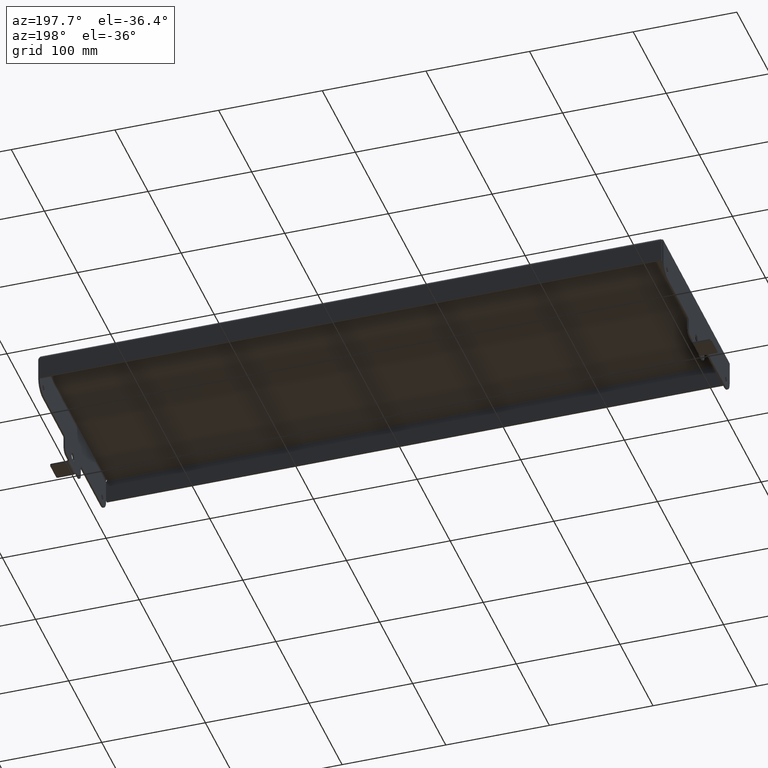
[diagram: clean part render]
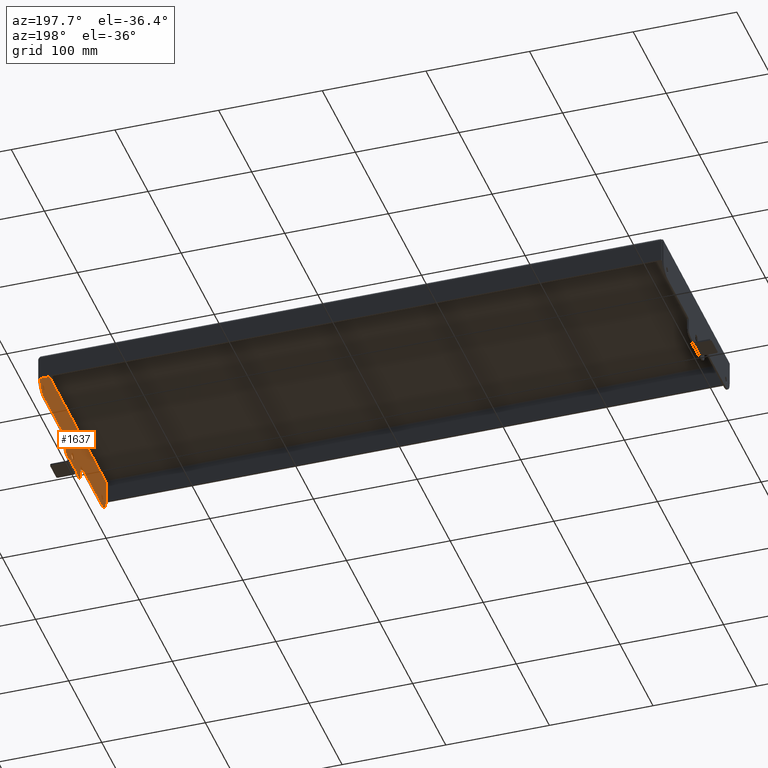
[diagram: same view with one face highlighted and labeled with its STEP entity id]
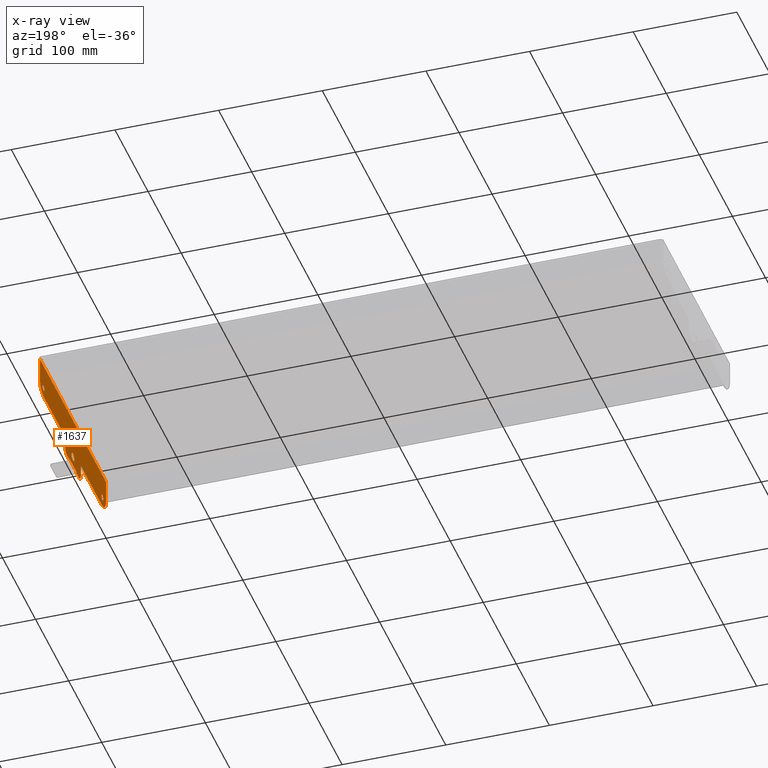
[diagram: x-ray of the same camera — body ghosted, the highlighted face saturated]
A machine part, auxiliary view. The second image highlights one B-rep face of the part: STEP entity #1637.
The next image is the same camera in x-ray: the body ghosted, the highlighted face saturated — about 0% of this face is hidden behind the body in this view.
In plain terms, the highlighted planar face has unit normal (1, 0, 0).
Its self-contained STEP definition (entity closure, byte-faithful):
#45 = CARTESIAN_POINT ( 'NONE',  ( 11.81500000000146322, 0.4271429945020360774, -1.160018063491211615 ) ) ;
#55 = FACE_BOUND ( 'NONE', #3131, .T. ) ;
#69 = LINE ( 'NONE', #2667, #3317 ) ;
#72 = ORIENTED_EDGE ( 'NONE', *, *, #3440, .F. ) ;
#93 = EDGE_CURVE ( 'NONE', #2783, #881, #749, .T. ) ;
#113 = AXIS2_PLACEMENT_3D ( 'NONE', #1660, #1330, #3770 ) ;
#137 = CARTESIAN_POINT ( 'NONE',  ( 11.81499999999999773, -1.000000000000000000, -0.5625000000000000000 ) ) ;
#156 = VERTEX_POINT ( 'NONE', #3931 ) ;
#182 = DIRECTION ( 'NONE',  ( 1.000000000000000000, -0.0000000000000000000, -0.0000000000000000000 ) ) ;
#198 = DIRECTION ( 'NONE',  ( 1.000000000000000000, -0.0000000000000000000, -0.0000000000000000000 ) ) ;
#215 = ORIENTED_EDGE ( 'NONE', *, *, #222, .T. ) ;
#216 = CARTESIAN_POINT ( 'NONE',  ( 11.81499999999999773, -1.000000000000000000, -0.5000000000000000000 ) ) ;
#222 = EDGE_CURVE ( 'NONE', #2947, #1318, #3489, .T. ) ;
#226 = AXIS2_PLACEMENT_3D ( 'NONE', #1380, #3914, #1417 ) ;
#244 = DIRECTION ( 'NONE',  ( 0.0000000000000000000, 0.0000000000000000000, 1.000000000000000000 ) ) ;
#245 = LINE ( 'NONE', #2439, #1865 ) ;
#246 = ORIENTED_EDGE ( 'NONE', *, *, #2261, .T. ) ;
#247 = LINE ( 'NONE', #3967, #1273 ) ;
#273 = AXIS2_PLACEMENT_3D ( 'NONE', #2115, #2073, #857 ) ;
#284 = CARTESIAN_POINT ( 'NONE',  ( 11.81499999999999773, -3.500000000000000000, -0.01599999999999999686 ) ) ;
#291 = CARTESIAN_POINT ( 'NONE',  ( 11.81499999999999773, -2.438750000000000195, -0.5000000000000000000 ) ) ;
#321 = ORIENTED_EDGE ( 'NONE', *, *, #2095, .F. ) ;
#342 = ORIENTED_EDGE ( 'NONE', *, *, #525, .T. ) ;
#360 = ORIENTED_EDGE ( 'NONE', *, *, #905, .F. ) ;
#375 = VECTOR ( 'NONE', #951, 39.37007874015748854 ) ;
#381 = CIRCLE ( 'NONE', #1813, 0.1089999999999999997 ) ;
#404 = VECTOR ( 'NONE', #2425, 39.37007874015748143 ) ;
#410 = VERTEX_POINT ( 'NONE', #2628 ) ;
#416 = VERTEX_POINT ( 'NONE', #2979 ) ;
#429 = VECTOR ( 'NONE', #1852, 39.37007874015748143 ) ;
#464 = LINE ( 'NONE', #868, #404 ) ;
#468 = EDGE_LOOP ( 'NONE', ( #2216 ) ) ;
#477 = ORIENTED_EDGE ( 'NONE', *, *, #610, .F. ) ;
#478 = AXIS2_PLACEMENT_3D ( 'NONE', #3447, #657, #2878 ) ;
#506 = VECTOR ( 'NONE', #633, 39.37007874015748143 ) ;
#520 = DIRECTION ( 'NONE',  ( 1.000000000000000000, 0.0000000000000000000, 0.0000000000000000000 ) ) ;
#525 = EDGE_CURVE ( 'NONE', #1371, #416, #1489, .T. ) ;
#534 = CARTESIAN_POINT ( 'NONE',  ( 11.81499999999999773, -3.500000000000000000, -0.1250000000000000000 ) ) ;
#549 = CARTESIAN_POINT ( 'NONE',  ( 11.81499999999999773, 0.9375000000000000000, -0.5625000000000000000 ) ) ;
#569 = CARTESIAN_POINT ( 'NONE',  ( 11.81499999999999773, -0.9375000000000000000, -0.9399999999999999467 ) ) ;
#590 = VERTEX_POINT ( 'NONE', #3071 ) ;
#594 = LINE ( 'NONE', #1463, #429 ) ;
#609 = VERTEX_POINT ( 'NONE', #284 ) ;
#610 = EDGE_CURVE ( 'NONE', #1888, #1376, #245, .T. ) ;
#633 = DIRECTION ( 'NONE',  ( 0.0000000000000000000, -1.000000000000000000, -0.0000000000000000000 ) ) ;
#636 = CIRCLE ( 'NONE', #113, 0.1089999999999999997 ) ;
#643 = ORIENTED_EDGE ( 'NONE', *, *, #3632, .T. ) ;
#644 = CARTESIAN_POINT ( 'NONE',  ( 11.81500000000146322, -0.4271429945020360774, -1.160018063491211615 ) ) ;
#657 = DIRECTION ( 'NONE',  ( 1.000000000000000000, -0.0000000000000000000, -0.0000000000000000000 ) ) ;
#736 = ORIENTED_EDGE ( 'NONE', *, *, #831, .T. ) ;
#749 = LINE ( 'NONE', #789, #1832 ) ;
#774 = EDGE_CURVE ( 'NONE', #2742, #2556, #1203, .T. ) ;
#789 = CARTESIAN_POINT ( 'NONE',  ( 11.81499999999999773, 3.939999999999999947, 0.4400000000000000022 ) ) ;
#790 = EDGE_CURVE ( 'NONE', #156, #410, #2930, .T. ) ;
#831 = EDGE_CURVE ( 'NONE', #1888, #1371, #1133, .T. ) ;
#857 = DIRECTION ( 'NONE',  ( 0.0000000000000000000, 0.0000000000000000000, -1.000000000000000000 ) ) ;
#868 = CARTESIAN_POINT ( 'NONE',  ( 11.81499999999999773, 0.9375000000000000000, -0.8449999999999999734 ) ) ;
#881 = VERTEX_POINT ( 'NONE', #2103 ) ;
#883 = CARTESIAN_POINT ( 'NONE',  ( 11.81500000000731454, -0.4324296188335550184, -1.189999999949562071 ) ) ;
#905 = EDGE_CURVE ( 'NONE', #2947, #2742, #3268, .T. ) ;
#951 = DIRECTION ( 'NONE',  ( -4.598749136963798573E-10, 0.1736481776660885323, 0.9848077530123563461 ) ) ;
#956 = CARTESIAN_POINT ( 'NONE',  ( 11.81499999999191175, -0.4218499999999693606, -1.130000000000154214 ) ) ;
#992 = CARTESIAN_POINT ( 'NONE',  ( 11.81499999999999773, -0.6875000000000000000, -1.189999999999999947 ) ) ;
#1003 = DIRECTION ( 'NONE',  ( 1.000000000000000000, 0.0000000000000000000, 0.0000000000000000000 ) ) ;
#1086 = VERTEX_POINT ( 'NONE', #2359 ) ;
#1100 = CARTESIAN_POINT ( 'NONE',  ( 11.81499999999999773, -4.000000000000000000, -1.129999999999999893 ) ) ;
#1133 = CIRCLE ( 'NONE', #3483, 0.06250000000000001388 ) ;
#1152 = AXIS2_PLACEMENT_3D ( 'NONE', #3724, #1003, #1287 ) ;
#1199 = CARTESIAN_POINT ( 'NONE',  ( 11.81499999999999773, 3.500000000000000000, -0.01599999999999999686 ) ) ;
#1203 = CIRCLE ( 'NONE', #226, 0.2499999999999999167 ) ;
#1217 = ORIENTED_EDGE ( 'NONE', *, *, #2920, .T. ) ;
#1256 = FACE_BOUND ( 'NONE', #1381, .T. ) ;
#1272 = VECTOR ( 'NONE', #3262, 39.37007874015748143 ) ;
#1273 = VECTOR ( 'NONE', #2421, 39.37007874015748143 ) ;
#1279 = VERTEX_POINT ( 'NONE', #3695 ) ;
#1287 = DIRECTION ( 'NONE',  ( 0.0000000000000000000, 0.0000000000000000000, -1.000000000000000000 ) ) ;
#1305 = ORIENTED_EDGE ( 'NONE', *, *, #1723, .T. ) ;
#1318 = VERTEX_POINT ( 'NONE', #1585 ) ;
#1330 = DIRECTION ( 'NONE',  ( 1.000000000000000000, -0.0000000000000000000, -0.0000000000000000000 ) ) ;
#1335 = VERTEX_POINT ( 'NONE', #956 ) ;
#1348 = AXIS2_PLACEMENT_3D ( 'NONE', #2150, #3994, #2231 ) ;
#1371 = VERTEX_POINT ( 'NONE', #216 ) ;
#1374 = DIRECTION ( 'NONE',  ( 0.0000000000000000000, -0.0000000000000000000, 1.000000000000000000 ) ) ;
#1376 = VERTEX_POINT ( 'NONE', #569 ) ;
#1380 = CARTESIAN_POINT ( 'NONE',  ( 11.81499999999999773, 0.6875000000000000000, -0.9399999999999999467 ) ) ;
#1381 = EDGE_LOOP ( 'NONE', ( #3249 ) ) ;
#1385 = VERTEX_POINT ( 'NONE', #2373 ) ;
#1417 = DIRECTION ( 'NONE',  ( 0.0000000000000000000, 0.0000000000000000000, -1.000000000000000000 ) ) ;
#1454 = VERTEX_POINT ( 'NONE', #549 ) ;
#1463 = CARTESIAN_POINT ( 'NONE',  ( 11.81499999999777728, 0.4140499999999882608, -1.130000000000064508 ) ) ;
#1476 = VERTEX_POINT ( 'NONE', #992 ) ;
#1489 = LINE ( 'NONE', #291, #3428 ) ;
#1495 = EDGE_CURVE ( 'NONE', #1086, #416, #3499, .T. ) ;
#1496 = CARTESIAN_POINT ( 'NONE',  ( 11.81499999999999773, 3.439999999999999947, -0.5000000000000000000 ) ) ;
#1508 = CIRCLE ( 'NONE', #273, 0.5000000000000000000 ) ;
#1542 = ORIENTED_EDGE ( 'NONE', *, *, #3878, .T. ) ;
#1550 = ORIENTED_EDGE ( 'NONE', *, *, #93, .F. ) ;
#1567 = LINE ( 'NONE', #1636, #506 ) ;
#1571 = EDGE_CURVE ( 'NONE', #2888, #1335, #2492, .T. ) ;
#1585 = CARTESIAN_POINT ( 'NONE',  ( 11.81499999999191175, 0.4218499999999693606, -1.130000000000154214 ) ) ;
#1636 = CARTESIAN_POINT ( 'NONE',  ( 11.81499999999999773, 2.438750000000000195, -0.5000000000000000000 ) ) ;
#1637 = ADVANCED_FACE ( 'NONE', ( #1256, #55, #3455, #2826 ), #1907, .F. ) ;
#1660 = CARTESIAN_POINT ( 'NONE',  ( 11.81499999999999773, 3.500000000000000000, -0.1250000000000000000 ) ) ;
#1723 = EDGE_CURVE ( 'NONE', #2452, #1279, #1567, .T. ) ;
#1738 = DIRECTION ( 'NONE',  ( 0.0000000000000000000, 1.000000000000000000, 0.0000000000000000000 ) ) ;
#1778 = CARTESIAN_POINT ( 'NONE',  ( 11.81499999999999773, 0.0000000000000000000, -1.189999999999999947 ) ) ;
#1792 = EDGE_CURVE ( 'NONE', #590, #590, #3301, .T. ) ;
#1813 = AXIS2_PLACEMENT_3D ( 'NONE', #534, #182, #244 ) ;
#1832 = VECTOR ( 'NONE', #1374, 39.37007874015748143 ) ;
#1852 = DIRECTION ( 'NONE',  ( 1.794886032906816524E-10, -1.000000000000000000, 1.766161645701992764E-11 ) ) ;
#1865 = VECTOR ( 'NONE', #2461, 39.37007874015748143 ) ;
#1888 = VERTEX_POINT ( 'NONE', #2250 ) ;
#1897 = VECTOR ( 'NONE', #2795, 39.37007874015748854 ) ;
#1903 = VECTOR ( 'NONE', #2021, 39.37007874015748143 ) ;
#1907 = PLANE ( 'NONE',  #2385 ) ;
#2021 = DIRECTION ( 'NONE',  ( 0.0000000000000000000, -0.0000000000000000000, 1.000000000000000000 ) ) ;
#2023 = EDGE_CURVE ( 'NONE', #2556, #1454, #464, .T. ) ;
#2073 = DIRECTION ( 'NONE',  ( 1.000000000000000000, 0.0000000000000000000, 0.0000000000000000000 ) ) ;
#2080 = CARTESIAN_POINT ( 'NONE',  ( 11.81499999999999773, -0.6875000000000000000, -0.9399999999999999467 ) ) ;
#2095 = EDGE_CURVE ( 'NONE', #2452, #2783, #1508, .T. ) ;
#2103 = CARTESIAN_POINT ( 'NONE',  ( 11.81499999999999773, 3.939999999999999947, 0.8800000000000000044 ) ) ;
#2115 = CARTESIAN_POINT ( 'NONE',  ( 11.81499999999999773, 3.439999999999999947, 0.0000000000000000000 ) ) ;
#2122 = ORIENTED_EDGE ( 'NONE', *, *, #2735, .F. ) ;
#2150 = CARTESIAN_POINT ( 'NONE',  ( 11.81499999999999773, -3.439999999999999947, 0.0000000000000000000 ) ) ;
#2212 = LINE ( 'NONE', #3132, #3067 ) ;
#2216 = ORIENTED_EDGE ( 'NONE', *, *, #1792, .T. ) ;
#2231 = DIRECTION ( 'NONE',  ( 0.0000000000000000000, 0.0000000000000000000, -1.000000000000000000 ) ) ;
#2245 = ORIENTED_EDGE ( 'NONE', *, *, #790, .F. ) ;
#2250 = CARTESIAN_POINT ( 'NONE',  ( 11.81499999999999773, -0.9375000000000000000, -0.5625000000000000000 ) ) ;
#2261 = EDGE_CURVE ( 'NONE', #1385, #881, #2212, .T. ) ;
#2305 = ORIENTED_EDGE ( 'NONE', *, *, #2023, .F. ) ;
#2308 = VECTOR ( 'NONE', #2647, 39.37007874015748143 ) ;
#2359 = CARTESIAN_POINT ( 'NONE',  ( 11.81499999999999773, -3.939999999999999947, 4.592425496802574219E-17 ) ) ;
#2373 = CARTESIAN_POINT ( 'NONE',  ( 11.81499999999999773, -3.940000000000099867, 0.8800000000000320899 ) ) ;
#2385 = AXIS2_PLACEMENT_3D ( 'NONE', #2534, #3774, #2868 ) ;
#2421 = DIRECTION ( 'NONE',  ( 1.794886032906816524E-10, 1.000000000000000000, 1.766161645701992764E-11 ) ) ;
#2425 = DIRECTION ( 'NONE',  ( 0.0000000000000000000, -0.0000000000000000000, 1.000000000000000000 ) ) ;
#2437 = VERTEX_POINT ( 'NONE', #1199 ) ;
#2439 = CARTESIAN_POINT ( 'NONE',  ( 11.81499999999999773, -0.9375000000000000000, -0.8449999999999999734 ) ) ;
#2452 = VERTEX_POINT ( 'NONE', #1496 ) ;
#2461 = DIRECTION ( 'NONE',  ( 0.0000000000000000000, -0.0000000000000000000, -1.000000000000000000 ) ) ;
#2492 = LINE ( 'NONE', #644, #375 ) ;
#2534 = CARTESIAN_POINT ( 'NONE',  ( 11.81499999999999773, -4.000000000000000000, 0.0000000000000000000 ) ) ;
#2556 = VERTEX_POINT ( 'NONE', #3930 ) ;
#2596 = EDGE_CURVE ( 'NONE', #2437, #2437, #636, .T. ) ;
#2619 = ORIENTED_EDGE ( 'NONE', *, *, #1571, .F. ) ;
#2628 = CARTESIAN_POINT ( 'NONE',  ( 11.81499999999915929, 0.4062500000000000555, -1.129999999999981464 ) ) ;
#2647 = DIRECTION ( 'NONE',  ( 0.0000000000000000000, 1.000000000000000000, 0.0000000000000000000 ) ) ;
#2667 = CARTESIAN_POINT ( 'NONE',  ( 11.81499999999999773, 0.0000000000000000000, -1.189999999999999947 ) ) ;
#2695 = ORIENTED_EDGE ( 'NONE', *, *, #3010, .F. ) ;
#2735 = EDGE_CURVE ( 'NONE', #1476, #2888, #69, .T. ) ;
#2742 = VERTEX_POINT ( 'NONE', #3309 ) ;
#2783 = VERTEX_POINT ( 'NONE', #2997 ) ;
#2790 = ORIENTED_EDGE ( 'NONE', *, *, #774, .F. ) ;
#2795 = DIRECTION ( 'NONE',  ( -4.598749136963798573E-10, -0.1736481776660885323, 0.9848077530123563461 ) ) ;
#2826 = FACE_OUTER_BOUND ( 'NONE', #3717, .T. ) ;
#2868 = DIRECTION ( 'NONE',  ( 0.0000000000000000000, 0.0000000000000000000, -1.000000000000000000 ) ) ;
#2878 = DIRECTION ( 'NONE',  ( 0.0000000000000000000, 0.0000000000000000000, 1.000000000000000000 ) ) ;
#2888 = VERTEX_POINT ( 'NONE', #883 ) ;
#2920 = EDGE_CURVE ( 'NONE', #1318, #410, #594, .T. ) ;
#2930 = LINE ( 'NONE', #1100, #1272 ) ;
#2947 = VERTEX_POINT ( 'NONE', #3075 ) ;
#2979 = CARTESIAN_POINT ( 'NONE',  ( 11.81499999999999773, -3.439999999999999947, -0.5000000000000000000 ) ) ;
#2997 = CARTESIAN_POINT ( 'NONE',  ( 11.81499999999999773, 3.939999999999999947, 0.0000000000000000000 ) ) ;
#3010 = EDGE_CURVE ( 'NONE', #1335, #156, #247, .T. ) ;
#3067 = VECTOR ( 'NONE', #3677, 39.37007874015748143 ) ;
#3071 = CARTESIAN_POINT ( 'NONE',  ( 11.81499999999999773, 0.0000000000000000000, -0.9162500000000000089 ) ) ;
#3075 = CARTESIAN_POINT ( 'NONE',  ( 11.81500000000617945, 0.4324296188425960641, -1.189999999999900915 ) ) ;
#3131 = EDGE_LOOP ( 'NONE', ( #1542 ) ) ;
#3132 = CARTESIAN_POINT ( 'NONE',  ( 11.81500000000000128, -4.000000000000000000, 0.8800000000000000044 ) ) ;
#3249 = ORIENTED_EDGE ( 'NONE', *, *, #2596, .T. ) ;
#3262 = DIRECTION ( 'NONE',  ( -0.0000000000000000000, 1.000000000000000000, 0.0000000000000000000 ) ) ;
#3268 = LINE ( 'NONE', #1778, #2308 ) ;
#3301 = CIRCLE ( 'NONE', #1152, 0.1562500000000000000 ) ;
#3309 = CARTESIAN_POINT ( 'NONE',  ( 11.81499999999999773, 0.6875000000000000000, -1.189999999999999947 ) ) ;
#3317 = VECTOR ( 'NONE', #1738, 39.37007874015748143 ) ;
#3319 = ORIENTED_EDGE ( 'NONE', *, *, #3756, .T. ) ;
#3375 = DIRECTION ( 'NONE',  ( 0.0000000000000000000, -1.000000000000000000, -0.0000000000000000000 ) ) ;
#3428 = VECTOR ( 'NONE', #3375, 39.37007874015748143 ) ;
#3440 = EDGE_CURVE ( 'NONE', #1376, #1476, #3784, .T. ) ;
#3447 = CARTESIAN_POINT ( 'NONE',  ( 11.81499999999999773, 1.000000000000000000, -0.5625000000000000000 ) ) ;
#3455 = FACE_BOUND ( 'NONE', #468, .T. ) ;
#3483 = AXIS2_PLACEMENT_3D ( 'NONE', #137, #198, #3854 ) ;
#3489 = LINE ( 'NONE', #45, #1897 ) ;
#3499 = CIRCLE ( 'NONE', #1348, 0.5000000000000000000 ) ;
#3550 = ORIENTED_EDGE ( 'NONE', *, *, #1495, .F. ) ;
#3567 = CARTESIAN_POINT ( 'NONE',  ( 11.81499999999999773, -3.939999999999999947, 0.4400000000000000022 ) ) ;
#3624 = DIRECTION ( 'NONE',  ( 0.0000000000000000000, 0.0000000000000000000, -1.000000000000000000 ) ) ;
#3632 = EDGE_CURVE ( 'NONE', #1279, #1454, #3843, .T. ) ;
#3677 = DIRECTION ( 'NONE',  ( 0.0000000000000000000, 1.000000000000000000, 0.0000000000000000000 ) ) ;
#3695 = CARTESIAN_POINT ( 'NONE',  ( 11.81499999999999773, 1.000000000000000000, -0.5000000000000000000 ) ) ;
#3717 = EDGE_LOOP ( 'NONE', ( #360, #215, #1217, #2245, #2695, #2619, #2122, #72, #477, #736, #342, #3550, #3319, #246, #1550, #321, #1305, #643, #2305, #2790 ) ) ;
#3724 = CARTESIAN_POINT ( 'NONE',  ( 11.81499999999999773, 0.0000000000000000000, -0.7599999999999998979 ) ) ;
#3756 = EDGE_CURVE ( 'NONE', #1086, #1385, #3785, .T. ) ;
#3770 = DIRECTION ( 'NONE',  ( 0.0000000000000000000, 0.0000000000000000000, 1.000000000000000000 ) ) ;
#3774 = DIRECTION ( 'NONE',  ( 1.000000000000000000, 0.0000000000000000000, 0.0000000000000000000 ) ) ;
#3784 = CIRCLE ( 'NONE', #3976, 0.2499999999999999167 ) ;
#3785 = LINE ( 'NONE', #3567, #1903 ) ;
#3843 = CIRCLE ( 'NONE', #478, 0.06250000000000001388 ) ;
#3854 = DIRECTION ( 'NONE',  ( 0.0000000000000000000, 0.0000000000000000000, 1.000000000000000000 ) ) ;
#3878 = EDGE_CURVE ( 'NONE', #609, #609, #381, .T. ) ;
#3914 = DIRECTION ( 'NONE',  ( 1.000000000000000000, 0.0000000000000000000, 0.0000000000000000000 ) ) ;
#3930 = CARTESIAN_POINT ( 'NONE',  ( 11.81499999999999773, 0.9375000000000000000, -0.9399999999999999467 ) ) ;
#3931 = CARTESIAN_POINT ( 'NONE',  ( 11.81499999999915751, -0.4062499999999425460, -1.129999999999963256 ) ) ;
#3967 = CARTESIAN_POINT ( 'NONE',  ( 11.81499999999777728, -0.4140499999999882608, -1.130000000000064508 ) ) ;
#3976 = AXIS2_PLACEMENT_3D ( 'NONE', #2080, #520, #3624 ) ;
#3994 = DIRECTION ( 'NONE',  ( 1.000000000000000000, 0.0000000000000000000, 0.0000000000000000000 ) ) ;